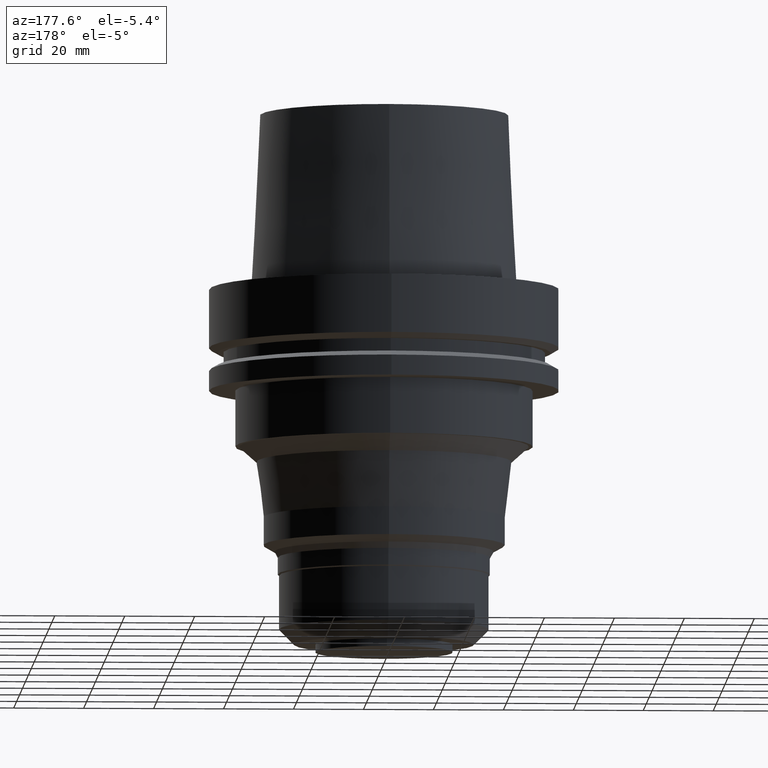
[diagram: clean part render]
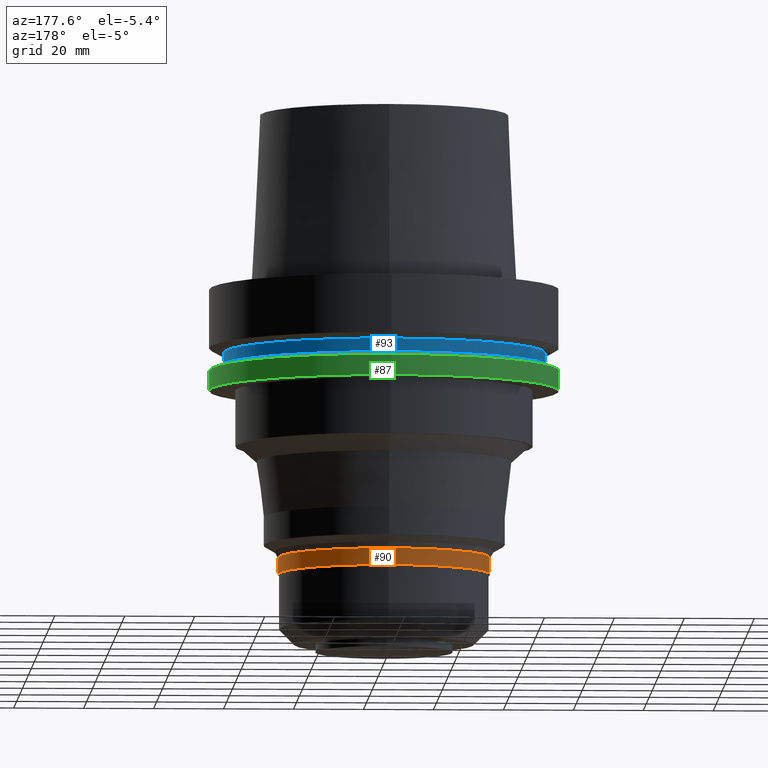
[diagram: same view with three faces highlighted in distinct colors, each labeled with its STEP entity id]
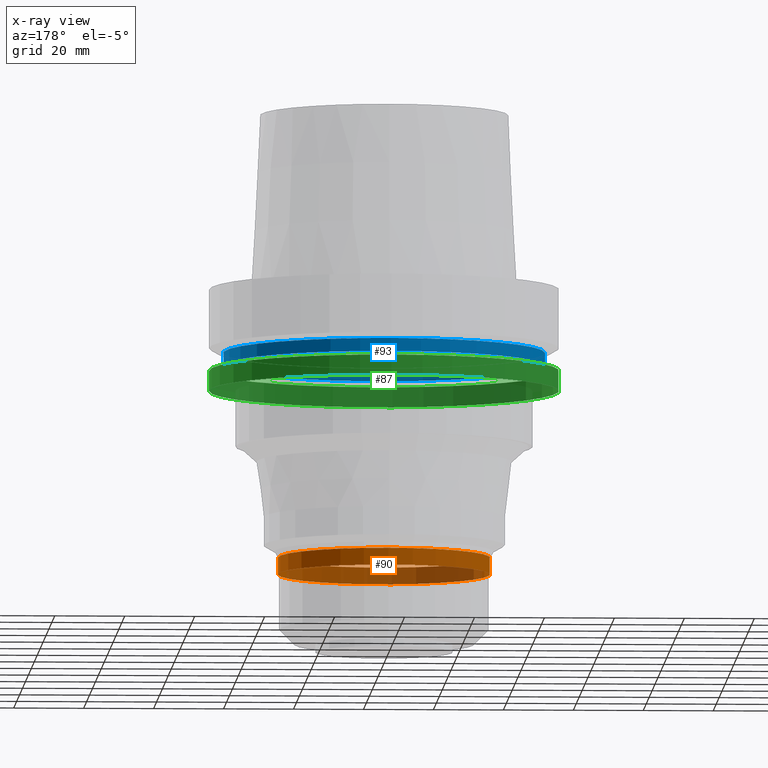
[diagram: x-ray of the same camera — body ghosted, the three highlighted faces saturated]
A machine part, auxiliary view with three faces highlighted in distinct colors.
The next image is the same camera in x-ray (body ghosted, the three faces saturated) — at least one of them is partly hidden behind the body in this view.
Their STEP definitions:

[orange] entity #90 — the highlighted cylindrical surface (bore or boss wall) has radius 30.35 mm, axis along (0, 0, -1).
#90=ADVANCED_FACE('Unnamed[1]',(#240,#241),#242,.T.);
#184=EDGE_CURVE('Unnamed[1]',#389,#389,#390,.T.);
#186=EDGE_CURVE('Unnamed[1]',#392,#392,#393,.T.);
#240=FACE_BOUND('',#451,.T.);
#241=FACE_BOUND('',#452,.T.);
#242=CYLINDRICAL_SURFACE('',#453,30.3500000000001);
#389=VERTEX_POINT('',#636);
#390=CIRCLE('',#637,30.3500000000003);
#392=VERTEX_POINT('',#640);
#393=CIRCLE('',#641,30.3499999999999);
#451=EDGE_LOOP('',(#694));
#452=EDGE_LOOP('',(#695));
#453=AXIS2_PLACEMENT_3D('',#696,#697,#698);
#636=CARTESIAN_POINT('',(4.7057484428137E-015,30.3500000000003,-76.8507041555169));
#637=AXIS2_PLACEMENT_3D('',#861,#862,#863);
#640=CARTESIAN_POINT('',(4.999375849645E-015,30.3499999999999,-81.6460036171369));
#641=AXIS2_PLACEMENT_3D('',#864,#865,#866);
#694=ORIENTED_EDGE('',*,*,#186,.F.);
#695=ORIENTED_EDGE('',*,*,#184,.T.);
#696=CARTESIAN_POINT('',(4.85256214622935E-015,9.7051242924587E-015,-79.2483538863269));
#697=DIRECTION('',(6.12323399573677E-017,1.22464679914735E-016,-1.0));
#698=DIRECTION('',(-1.23259516440783E-032,1.0,1.22464679914735E-016));
#861=CARTESIAN_POINT('',(4.7057484428137E-015,9.4114968856274E-015,-76.8507041555169));
#862=DIRECTION('',(6.12323399573677E-017,1.22464679914735E-016,-1.0));
#863=DIRECTION('',(-1.23259516440783E-032,1.0,1.22464679914735E-016));
#864=CARTESIAN_POINT('',(4.999375849645E-015,9.99875169928999E-015,-81.6460036171369));
#865=DIRECTION('',(6.12323399573677E-017,1.22464679914735E-016,-1.0));
#866=DIRECTION('',(-1.23259516440783E-032,1.0,1.22464679914735E-016));

[blue] entity #93 — the highlighted cylindrical surface (bore or boss wall) has radius 46 mm, axis along (0, 0, -1).
#93=ADVANCED_FACE('Unnamed[1]',(#245,#246),#247,.T.);
#142=EDGE_CURVE('Unnamed[1]',#322,#322,#323,.T.);
#151=EDGE_CURVE('Unnamed[1]',#336,#336,#337,.T.);
#245=FACE_BOUND('',#457,.T.);
#246=FACE_BOUND('',#458,.T.);
#247=CYLINDRICAL_SURFACE('',#459,46.0);
#322=VERTEX_POINT('',#552);
#323=CIRCLE('',#553,46.0);
#336=VERTEX_POINT('',#570);
#337=CIRCLE('',#571,46.0);
#457=EDGE_LOOP('',(#700));
#458=EDGE_LOOP('',(#701));
#459=AXIS2_PLACEMENT_3D('',#702,#703,#704);
#552=CARTESIAN_POINT('',(1.10983616172729E-015,46.0,-18.125));
#553=AXIS2_PLACEMENT_3D('',#786,#787,#788);
#570=CARTESIAN_POINT('',(1.33945743656742E-015,46.0,-21.875));
#571=AXIS2_PLACEMENT_3D('',#801,#802,#803);
#700=ORIENTED_EDGE('',*,*,#151,.F.);
#701=ORIENTED_EDGE('',*,*,#142,.T.);
#702=CARTESIAN_POINT('',(1.22464679914735E-015,2.44929359829471E-015,-20.0));
#703=DIRECTION('',(6.12323399573677E-017,1.22464679914735E-016,-1.0));
#704=DIRECTION('',(-1.23259516440783E-032,1.0,1.22464679914735E-016));
#786=CARTESIAN_POINT('',(1.10983616172729E-015,2.21967232345458E-015,-18.125));
#787=DIRECTION('',(6.12323399573677E-017,1.22464679914735E-016,-1.0));
#788=DIRECTION('',(-1.23259516440783E-032,1.0,1.22464679914735E-016));
#801=CARTESIAN_POINT('',(1.33945743656742E-015,2.67891487313484E-015,-21.875));
#802=DIRECTION('',(6.12323399573677E-017,1.22464679914735E-016,-1.0));
#803=DIRECTION('',(-1.23259516440783E-032,1.0,1.22464679914735E-016));

[green] entity #87 — the highlighted cylindrical surface (bore or boss wall) has radius 50 mm, axis along (0, 0, -1).
#77=EDGE_CURVE('Unnamed[1]',#220,#220,#221,.T.);
#87=ADVANCED_FACE('Unnamed[1]',(#235,#236),#237,.T.);
#164=EDGE_CURVE('Unnamed[1]',#357,#357,#358,.T.);
#220=VERTEX_POINT('',#426);
#221=CIRCLE('',#427,50.0);
#235=FACE_BOUND('',#445,.T.);
#236=FACE_BOUND('',#446,.T.);
#237=CYLINDRICAL_SURFACE('',#447,50.0);
#357=VERTEX_POINT('',#596);
#358=CIRCLE('',#597,50.0);
#426=CARTESIAN_POINT('',(1.77573785876366E-015,50.0,-29.0));
#427=AXIS2_PLACEMENT_3D('',#672,#673,#674);
#445=EDGE_LOOP('',(#688));
#446=EDGE_LOOP('',(#689));
#447=AXIS2_PLACEMENT_3D('',#690,#691,#692);
#596=CARTESIAN_POINT('',(1.42350465615161E-015,50.0,-23.24759526));
#597=AXIS2_PLACEMENT_3D('',#825,#826,#827);
#672=CARTESIAN_POINT('',(1.77573785876366E-015,3.55147571752733E-015,-29.0));
#673=DIRECTION('',(6.12323399573677E-017,1.22464679914735E-016,-1.0));
#674=DIRECTION('',(-1.23259516440783E-032,1.0,1.22464679914735E-016));
#688=ORIENTED_EDGE('',*,*,#77,.F.);
#689=ORIENTED_EDGE('',*,*,#164,.T.);
#690=CARTESIAN_POINT('',(1.59962125745764E-015,3.19924251491527E-015,-26.12379763));
#691=DIRECTION('',(6.12323399573677E-017,1.22464679914735E-016,-1.0));
#692=DIRECTION('',(-1.23259516440783E-032,1.0,1.22464679914735E-016));
#825=CARTESIAN_POINT('',(1.42350465615161E-015,2.84700931230322E-015,-23.24759526));
#826=DIRECTION('',(6.12323399573677E-017,1.22464679914735E-016,-1.0));
#827=DIRECTION('',(-1.23259516440783E-032,1.0,1.22464679914735E-016));